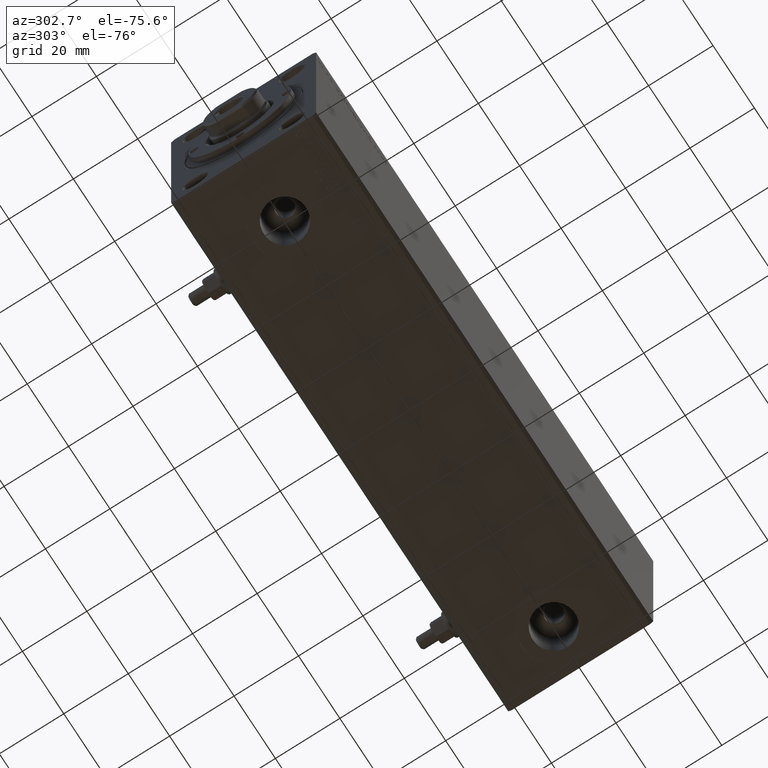
[diagram: clean part render]
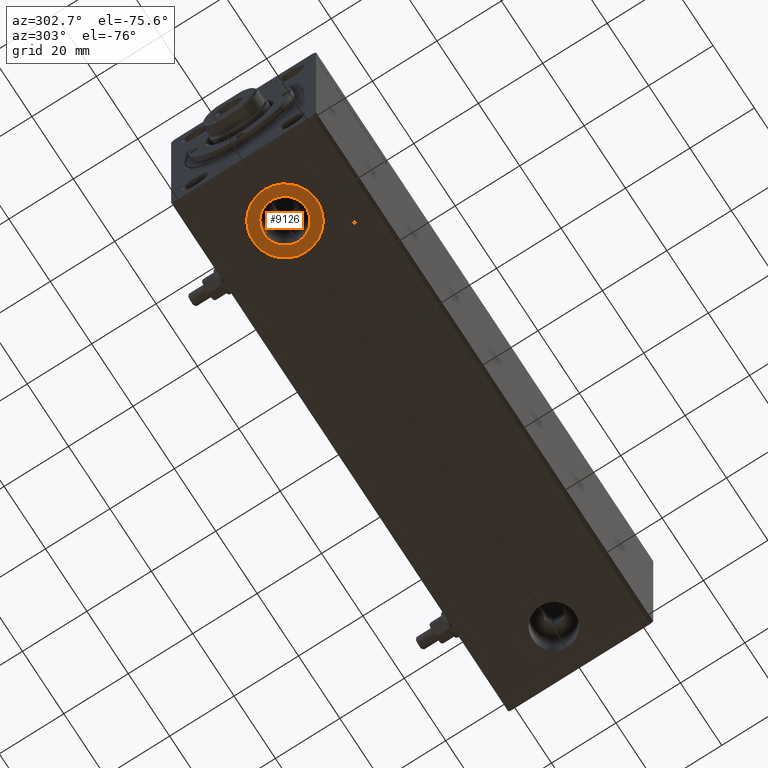
[diagram: same view with one face highlighted and labeled with its STEP entity id]
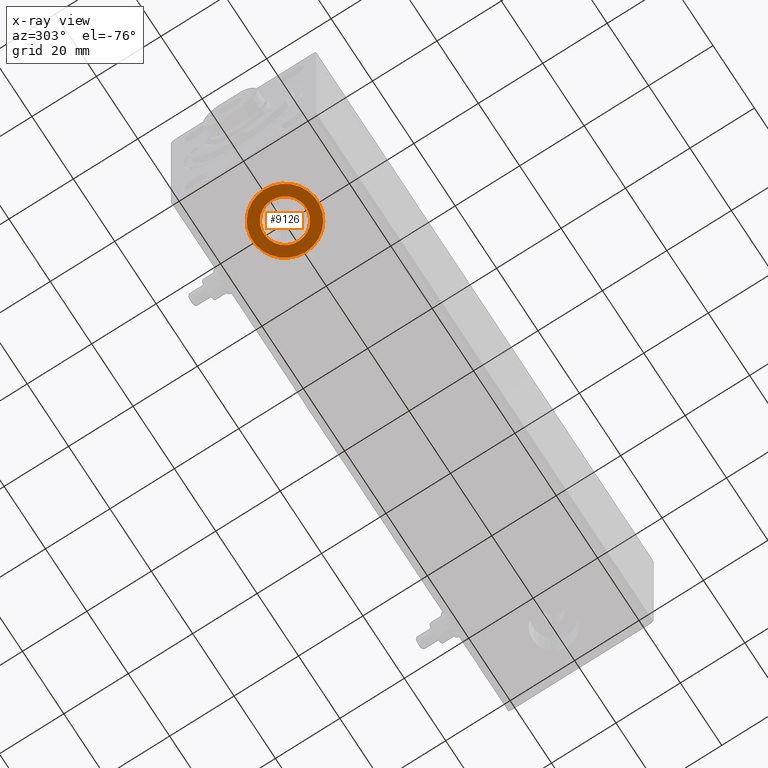
[diagram: x-ray of the same camera — body ghosted, the highlighted face saturated]
A machine part, auxiliary view. The second image highlights one B-rep face of the part: STEP entity #9126.
The next image is the same camera in x-ray: the body ghosted, the highlighted face saturated — about 0% of this face is hidden behind the body in this view.
In plain terms, the highlighted planar face has unit normal (0, 0, -1).
Its self-contained STEP definition (entity closure, byte-faithful):
#1878 = DIRECTION ( 'NONE',  ( -1.000000000000000000, 0.000000000000000000, 0.000000000000000000 ) ) ;
#3414 = AXIS2_PLACEMENT_3D ( 'NONE', #27784, #14073, #13622 ) ;
#3972 = CARTESIAN_POINT ( 'NONE',  ( 26.57999999999999829, 3.384576556735897587E-15, -32.39999999999999858 ) ) ;
#4573 = DIRECTION ( 'NONE',  ( 0.000000000000000000, 0.000000000000000000, -1.000000000000000000 ) ) ;
#7696 = PLANE ( 'NONE',  #42078 ) ;
#7943 = CIRCLE ( 'NONE', #35677, 10.00000000000000000 ) ;
#9126 = ADVANCED_FACE ( 'NONE', ( #20801, #34745 ), #7696, .T. ) ;
#9427 = EDGE_CURVE ( 'NONE', #36520, #31077, #17297, .T. ) ;
#11535 = VERTEX_POINT ( 'NONE', #15842 ) ;
#11573 = DIRECTION ( 'NONE',  ( -1.000000000000000000, 0.000000000000000000, 0.000000000000000000 ) ) ;
#11716 = EDGE_CURVE ( 'NONE', #31077, #36520, #25392, .T. ) ;
#12217 = VERTEX_POINT ( 'NONE', #27585 ) ;
#12927 = CARTESIAN_POINT ( 'NONE',  ( 13.41999999999999460, 2.578758962896938545E-15, -32.39999999999999858 ) ) ;
#13622 = DIRECTION ( 'NONE',  ( -1.000000000000000000, 0.000000000000000000, 0.000000000000000000 ) ) ;
#13929 = ORIENTED_EDGE ( 'NONE', *, *, #9427, .F. ) ;
#14073 = DIRECTION ( 'NONE',  ( 0.000000000000000000, 0.000000000000000000, -1.000000000000000000 ) ) ;
#15842 = CARTESIAN_POINT ( 'NONE',  ( 30.00000000000000000, 3.803405762044290421E-15, -32.39999999999999858 ) ) ;
#17297 = CIRCLE ( 'NONE', #3414, 6.580000000000002736 ) ;
#18149 = EDGE_CURVE ( 'NONE', #11535, #12217, #7943, .T. ) ;
#20008 = EDGE_CURVE ( 'NONE', #12217, #11535, #34250, .T. ) ;
#20801 = FACE_BOUND ( 'NONE', #25247, .T. ) ;
#20826 = ORIENTED_EDGE ( 'NONE', *, *, #18149, .T. ) ;
#21227 = ORIENTED_EDGE ( 'NONE', *, *, #20008, .T. ) ;
#21989 = CARTESIAN_POINT ( 'NONE',  ( 19.99999999999999645, 2.578758962896937757E-15, -32.39999999999999858 ) ) ;
#22751 = DIRECTION ( 'NONE',  ( 0.000000000000000000, 0.000000000000000000, -1.000000000000000000 ) ) ;
#24934 = DIRECTION ( 'NONE',  ( -1.000000000000000000, 0.000000000000000000, 0.000000000000000000 ) ) ;
#25247 = EDGE_LOOP ( 'NONE', ( #13929, #25357 ) ) ;
#25357 = ORIENTED_EDGE ( 'NONE', *, *, #11716, .F. ) ;
#25392 = CIRCLE ( 'NONE', #31257, 6.580000000000002736 ) ;
#25515 = DIRECTION ( 'NONE',  ( -1.000000000000000000, 0.000000000000000000, -0.000000000000000000 ) ) ;
#27585 = CARTESIAN_POINT ( 'NONE',  ( 9.999999999999996447, 2.578758962896937757E-15, -32.39999999999999858 ) ) ;
#27784 = CARTESIAN_POINT ( 'NONE',  ( 19.99999999999999645, 2.578758962896938545E-15, -32.39999999999999858 ) ) ;
#28384 = CARTESIAN_POINT ( 'NONE',  ( 19.99999999999999645, 2.578758962896938545E-15, -32.39999999999999858 ) ) ;
#28856 = DIRECTION ( 'NONE',  ( 0.000000000000000000, 0.000000000000000000, -1.000000000000000000 ) ) ;
#30437 = EDGE_LOOP ( 'NONE', ( #21227, #20826 ) ) ;
#31077 = VERTEX_POINT ( 'NONE', #3972 ) ;
#31257 = AXIS2_PLACEMENT_3D ( 'NONE', #28384, #4573, #24934 ) ;
#32604 = CARTESIAN_POINT ( 'NONE',  ( 0.000000000000000000, 0.000000000000000000, -32.39999999999999858 ) ) ;
#32826 = DIRECTION ( 'NONE',  ( 0.000000000000000000, 0.000000000000000000, -1.000000000000000000 ) ) ;
#34250 = CIRCLE ( 'NONE', #37192, 10.00000000000000000 ) ;
#34745 = FACE_OUTER_BOUND ( 'NONE', #30437, .T. ) ;
#35677 = AXIS2_PLACEMENT_3D ( 'NONE', #43315, #22751, #11573 ) ;
#36520 = VERTEX_POINT ( 'NONE', #12927 ) ;
#37192 = AXIS2_PLACEMENT_3D ( 'NONE', #21989, #28856, #1878 ) ;
#42078 = AXIS2_PLACEMENT_3D ( 'NONE', #32604, #32826, #25515 ) ;
#43315 = CARTESIAN_POINT ( 'NONE',  ( 19.99999999999999645, 2.578758962896937757E-15, -32.39999999999999858 ) ) ;